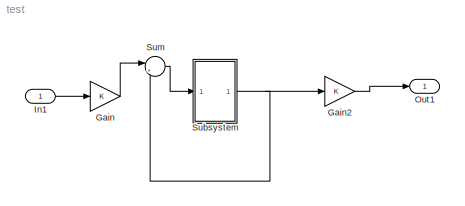
MODEL test
KIND model
BLOCK [Gain] Gain
  OutDataTypeMode = Inherit via internal rule
  ParameterDataTypeMode = Inherit via internal rule
  SaturateOnIntegerOverflow = off
BLOCK [Gain] Gain2
  OutDataTypeMode = Inherit via internal rule
  ParameterDataTypeMode = Inherit via internal rule
  SaturateOnIntegerOverflow = off
BLOCK [Inport] In1
  IconDisplay = Port number
BLOCK [Outport] Out1
  BusOutputAsStruct = off
  IconDisplay = Port number
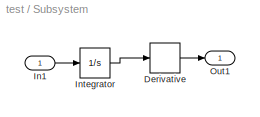
BLOCK [SubSystem] Subsystem
  MaskHideContents = off
  MinAlgLoopOccurrences = off
  Ports = [1, 1]
  RTWSystemCode = Auto
  TreatAsAtomicUnit = off
BLOCK [Derivative] Subsystem/Derivative
BLOCK [Inport] Subsystem/In1
  IconDisplay = Port number
BLOCK [Integrator] Subsystem/Integrator
  IgnoreLimit = off
  Ports = [1, 1]
BLOCK [Outport] Subsystem/Out1
  BusOutputAsStruct = off
  IconDisplay = Port number
BLOCK [Sum] Sum
  IconShape = round
  InputSameDT = off
  Inputs = |++
  OutDataTypeMode = Inherit via internal rule
  Ports = [2, 1]
  SaturateOnIntegerOverflow = off
LINE Gain2:1 -> Out1:1
LINE Gain:1 -> Sum:1
LINE In1:1 -> Gain:1
LINE Subsystem/Derivative:1 -> Subsystem/Out1:1
LINE Subsystem/In1:1 -> Subsystem/Integrator:1
LINE Subsystem/Integrator:1 -> Subsystem/Derivative:1
NET Subsystem:1 -> Gain2:1, Sum:2
LINE Sum:1 -> Subsystem:1
note: NET lines group one-source signal fan-out (src -> all destinations, sorted); 1:1 wires keep LINE
